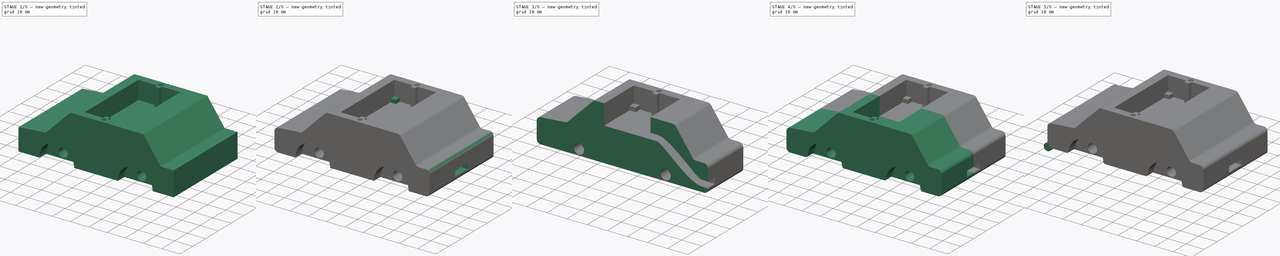
[diagram: build sequence overview — one tinted view per stage of 5, left to right]
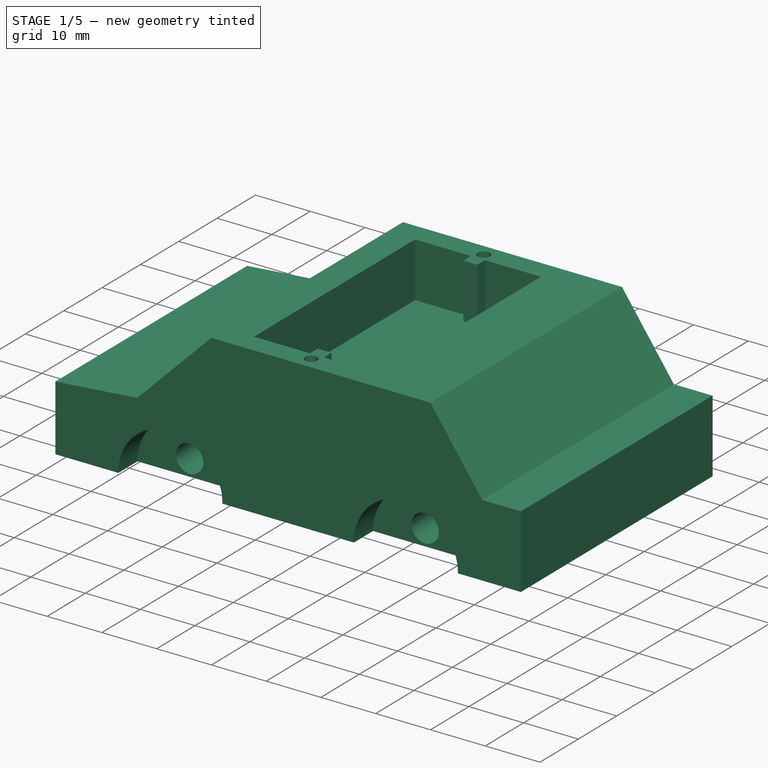
[diagram: stage 1 of 5 — iso view after this stage's code; geometry added in this stage tinted green]
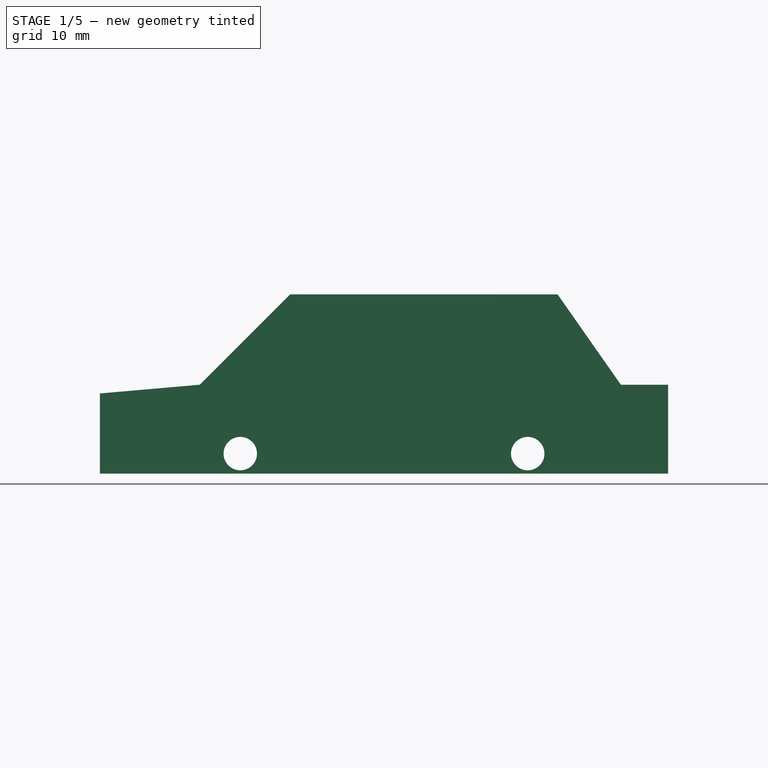
[diagram: stage 1 of 5 — front view after this stage's code; geometry added in this stage tinted green]
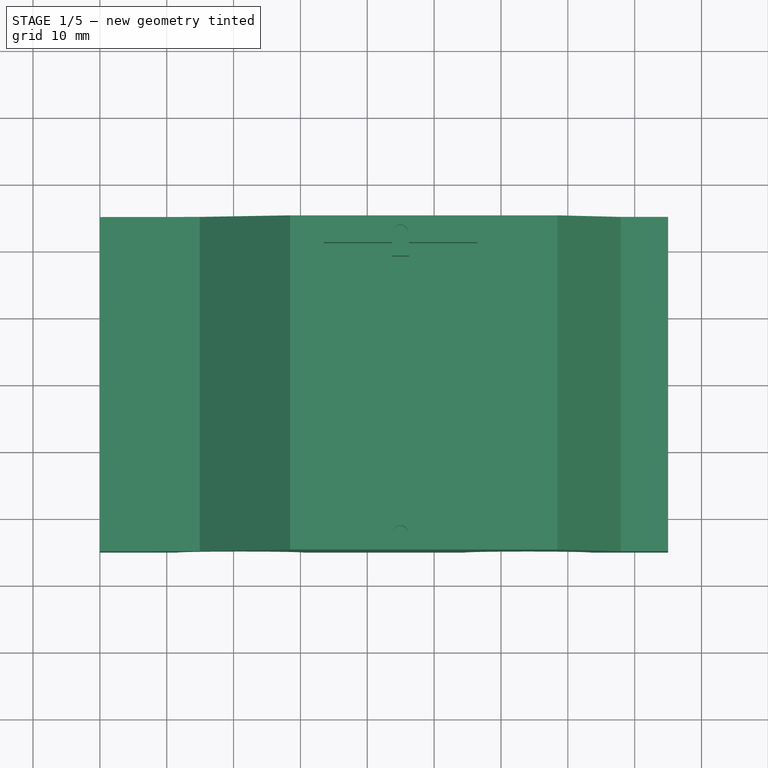
[diagram: stage 1 of 5 — top view after this stage's code; geometry added in this stage tinted green]
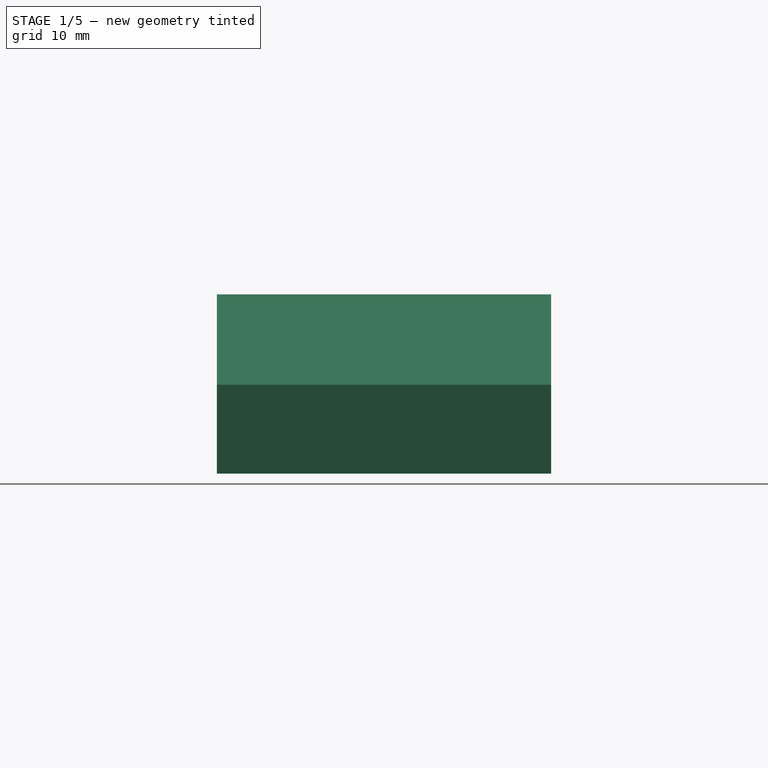
[diagram: stage 1 of 5 — right view after this stage's code; geometry added in this stage tinted green]
FCSTD DOCUMENT  (FreeCAD 0.21R30029 (Git))
Label: Car
License: All rights reserved
LicenseURL: http://en.wikipedia.org/wiki/All_rights_reserved
objects: Sketcher::SketchObject×10, PartDesign::Pad×6, PartDesign::Body×5, PartDesign::Pocket×4, Part::FeaturePython×3, PartDesign::Fillet×2, PartDesign::FeatureBase×2, Part::Feature×2, PartDesign::Mirrored×1, Part::Plane×1, App::DocumentObjectGroup×1, App::Part×1
note: 48 computed .brp shape members not serialized (recipe doc carries the construction recipe); baked Part::Feature solids carry a one-line shape summary decoded from their .brp

FEATURE [Sketcher::SketchObject] Sketch
  FullyConstrained = true
  MapMode = 5
  Placement = pos=(0,0,0) rot=(1,0,0;1.5708rad)
  Support = -> [XZ_Plane]
  sketch-geometry (15):
    g0: ArcOfCircle CenterX=21 CenterY=0 CenterZ=0 NormalX=0 NormalY=0 NormalZ=1 AngleXU=0 Radius=9.5 StartAngle=0 EndAngle=3.14159
    g1: ArcOfCircle CenterX=64 CenterY=0 CenterZ=0 NormalX=0 NormalY=0 NormalZ=1 AngleXU=0 Radius=9.5 StartAngle=0 EndAngle=3.14159
    g2: LineSegment StartX=30.5 StartY=1.2e-15 StartZ=0 EndX=54.5 EndY=1.2e-15 EndZ=0
    g3: LineSegment StartX=11.5 StartY=1.2e-15 StartZ=0 EndX=0 EndY=1.2e-15 EndZ=0
    g4: LineSegment StartX=0 StartY=1.2e-15 StartZ=0 EndX=0 EndY=12 EndZ=0
    g5: LineSegment StartX=0 StartY=12 StartZ=0 EndX=14.9429 EndY=13.3073 EndZ=0
    g6: LineSegment StartX=14.9429 StartY=13.3073 StartZ=0 EndX=28.4631 EndY=26.8275 EndZ=0
    g7: LineSegment StartX=28.4631 StartY=26.8275 StartZ=0 EndX=68.4631 EndY=26.8275 EndZ=0
    g8: LineSegment StartX=68.4631 StartY=26.8275 StartZ=0 EndX=77.93 EndY=13.3073 EndZ=0
    g9: LineSegment StartX=77.93 StartY=13.3073 StartZ=0 EndX=85 EndY=13.3073 EndZ=0
    g10: LineSegment StartX=85 StartY=13.3073 StartZ=0 EndX=85 EndY=1.8e-15 EndZ=0
    g11: LineSegment StartX=85 StartY=1.2e-15 StartZ=0 EndX=73.5 EndY=1.2e-15 EndZ=0
    g12: LineSegment StartX=54.5 StartY=1.2e-15 StartZ=0 EndX=73.5 EndY=1.2e-15 EndZ=0
    g13: LineSegment StartX=11.5 StartY=1.2e-15 StartZ=0 EndX=30.5 EndY=1.2e-15 EndZ=0
    g14: LineSegment StartX=14.9429 StartY=13.3073 StartZ=0 EndX=77.93 EndY=13.3073 EndZ=0
  constraints (43):
    c: Coincident(g2,g0)
    c: Coincident(g2,g1)
    c: Horizontal(g2)
    c: Coincident(g3,g0)
    c: Horizontal(g3)
    c: Coincident(g4,g3)
    c: Vertical(g4)
    c: Coincident(g5,g4)
    c: Coincident(g6,g5)
    c: Coincident(g7,g6)
    c: Horizontal(g7)
    c: Coincident(g8,g7)
    c: Coincident(g9,g8)
    c: Horizontal(g9)
    c: Coincident(g10,g9)
    c: Coincident(g11,g10)
    c: Coincident(g11,g1)
    c: Horizontal(g11)
    c: Coincident(g12,g1)
    c: Coincident(g12,g1)
    c: Coincident(g13,g0)
    c: Coincident(g13,g0)
    c: PointOnObject(g1,g12)
    c: PointOnObject(g0,g13)
    c: Horizontal(g12)
    c: Coincident(g3,g-1)
    c: Horizontal(g13)
    c: Vertical(g10)
    c: Distance(g7) = 40
    c: Angle(g7,g8) = 2.18166
    c: Coincident(g14,g5)
    c: Coincident(g14,g8)
    c: Horizontal(g14)
    c: Angle(g6,g7) = 2.35619
    c: Angle(g4,g5) = 1.65806
    c: Equal(g3,g11)
    c: Equal(g13,g12)
    c: Diameter(g0) = 19
    c: Distance(g3) = 11.5
    c: DistanceX(g3,g10) = 85
    c: Distance(g4) = 12
    c: Distance(g9) = 7.07
    c: Distance(g5) = 15
FEATURE [PartDesign::Pad] Pad
  Direction = (0,-1,-2e-16)
  Length = 50
  Length2 = 10
  Midplane = true
  Placement = pos=(0,0,0) rot=(1,0,0;1.5708rad)
  Profile = -> Sketch
  ReferenceAxis = -> Sketch [N_Axis]
  Type = 0
FEATURE [Sketcher::SketchObject] Sketch001
  ExternalGeometry = -> [Pad]
  FullyConstrained = true
  MapMode = 5
  Placement = pos=(0,-6e-15,26.8275) rot=(0,0,1;3.14159rad)
  Support = -> [Pad]
  sketch-geometry (18):
    g0: LineSegment StartX=-56.4631 StartY=21 StartZ=0 EndX=-56.4631 EndY=-21 EndZ=0
    g1: LineSegment StartX=-33.4631 StartY=-21 StartZ=0 EndX=-33.4631 EndY=21 EndZ=0
    g2: LineSegment StartX=-28.4631 StartY=25 StartZ=0 EndX=-33.4631 EndY=21 EndZ=0
    g3: LineSegment StartX=-33.4631 StartY=-21 StartZ=0 EndX=-28.4631 EndY=-25 EndZ=0
    g4: LineSegment StartX=-56.4631 StartY=21 StartZ=0 EndX=-46.2331 EndY=21 EndZ=0
    g5: LineSegment StartX=-46.2331 StartY=21 StartZ=0 EndX=-46.2331 EndY=19 EndZ=0
    g6: LineSegment StartX=-46.2331 StartY=19 StartZ=0 EndX=-43.6931 EndY=19 EndZ=0
    g7: LineSegment StartX=-43.6931 StartY=19 StartZ=0 EndX=-43.6931 EndY=21 EndZ=0
    g8: LineSegment StartX=-43.6931 StartY=21 StartZ=0 EndX=-33.4631 EndY=21 EndZ=0
    g9: LineSegment StartX=-56.4631 StartY=-21 StartZ=0 EndX=-46.2331 EndY=-21 EndZ=0
    g10: LineSegment StartX=-46.2331 StartY=-21 StartZ=0 EndX=-46.2331 EndY=-19 EndZ=0
    g11: LineSegment StartX=-46.2331 StartY=-19 StartZ=0 EndX=-43.6931 EndY=-19 EndZ=0
    g12: LineSegment StartX=-43.6931 StartY=-19 StartZ=0 EndX=-43.6931 EndY=-21 EndZ=0
    g13: LineSegment StartX=-43.6931 StartY=-21 StartZ=0 EndX=-33.4631 EndY=-21 EndZ=0
    g14: LineSegment StartX=-46.2331 StartY=-21 StartZ=0 EndX=-43.6931 EndY=-21 EndZ=0
    g15: LineSegment StartX=-46.2331 StartY=21 StartZ=0 EndX=-43.6931 EndY=21 EndZ=0
    g16: LineSegment StartX=-43.6931 StartY=19 StartZ=0 EndX=-43.6931 EndY=-19 EndZ=0
    g17: LineSegment StartX=-46.2331 StartY=-19 StartZ=0 EndX=-46.2331 EndY=19 EndZ=0
  constraints (48):
    c: Vertical(g0)
    c: Vertical(g1)
    c: Distance(g0) = 42
    c: Coincident(g2,g-4)
    c: Coincident(g3,g-3)
    c: Equal(g3,g2)
    c: DistanceX(g2,g2) = 5
    c: Coincident(g4,g0)
    c: Horizontal(g4)
    c: Coincident(g5,g4)
    c: Coincident(g6,g5)
    c: Horizontal(g6)
    c: Coincident(g7,g6)
    c: Coincident(g8,g7)
    c: Coincident(g8,g1)
    c: Horizontal(g8)
    c: Coincident(g9,g0)
    c: Coincident(g10,g9)
    c: Vertical(g10)
    c: Coincident(g11,g10)
    c: Coincident(g12,g11)
    c: Coincident(g13,g12)
    c: Coincident(g13,g1)
    c: Horizontal(g13)
    c: Coincident(g1,g2)
    c: Coincident(g3,g1)
    c: Vertical(g12)
    c: Horizontal(g11)
    c: Horizontal(g9)
    c: Coincident(g14,g9)
    c: Coincident(g14,g12)
    c: Coincident(g15,g4)
    c: Coincident(g15,g7)
    c: Vertical(g7)
    c: Vertical(g5)
    c: Horizontal(g15)
    c: Horizontal(g14)
    c: Coincident(g16,g6)
    c: Coincident(g16,g11)
    c: Coincident(g17,g10)
    c: Coincident(g17,g5)
    c: Vertical(g17)
    c: Vertical(g16)
    c: Equal(g4,g8)
    c: DistanceX(g0,g1) = 23
    c: Distance(g6) = 2.54
    c: Distance(g5) = 2
    c: Equal(g12,g7)
FEATURE [PartDesign::Pocket] Pocket
  BaseFeature = -> Pad
  Direction = (0,2e-16,-1)
  Length = 10
  Length2 = 5
  Placement = pos=(0,0,0) rot=(1,0,0;1.5708rad)
  Profile = -> Sketch001
  ReferenceAxis = -> Sketch001 [N_Axis]
  Type = 0
FEATURE [Sketcher::SketchObject] Sketch002
  ExternalGeometry = -> [Pocket]
  FullyConstrained = true
  MapMode = 5
  Placement = pos=(0,0,0) rot=(1,0,0;1.5708rad)
  Support = -> [XZ_Plane]
  sketch-geometry (9):
    g0: ArcOfCircle CenterX=21 CenterY=0 CenterZ=0 NormalX=0 NormalY=0 NormalZ=1 AngleXU=0 Radius=9.5 StartAngle=-5.3e-15 EndAngle=3.14159
    g1: ArcOfCircle CenterX=64 CenterY=0 CenterZ=0 NormalX=0 NormalY=0 NormalZ=1 AngleXU=0 Radius=9.5 StartAngle=1.3e-15 EndAngle=3.14159
    g2: LineSegment StartX=11.5 StartY=-1.17e-13 StartZ=0 EndX=30.5 EndY=-1.17e-13 EndZ=0
    g3: LineSegment StartX=54.5 StartY=1.24e-14 StartZ=0 EndX=73.5 EndY=1.24e-14 EndZ=0
    g4: Circle CenterX=21 CenterY=3 CenterZ=0 NormalX=0 NormalY=0 NormalZ=1 AngleXU=0 Radius=2.5
    g5: Circle CenterX=64 CenterY=3 CenterZ=0 NormalX=0 NormalY=0 NormalZ=1 AngleXU=0 Radius=2.5
    g6: LineSegment StartX=64 StartY=3 StartZ=0 EndX=64 EndY=0 EndZ=0
    g7: LineSegment StartX=21 StartY=3 StartZ=0 EndX=21 EndY=0 EndZ=0
    g8: LineSegment StartX=21 StartY=3 StartZ=0 EndX=64 EndY=3 EndZ=0
  constraints (22):
    c: Coincident(g0,g-4)
    c: Coincident(g1,g-3)
    c: Coincident(g2,g0)
    c: Coincident(g2,g0)
    c: Coincident(g3,g1)
    c: Coincident(g3,g1)
    c: Horizontal(g3)
    c: Horizontal(g2)
    c: Coincident(g1,g-3)
    c: Coincident(g0,g-4)
    c: Coincident(g6,g5)
    c: Coincident(g6,g1)
    c: Coincident(g7,g4)
    c: Coincident(g7,g0)
    c: Coincident(g8,g4)
    c: Coincident(g8,g5)
    c: Horizontal(g8)
    c: Vertical(g6)
    c: Vertical(g7)
    c: Diameter(g4) = 5
    c: Distance(g7) = 3
    c: Equal(g5,g4)
FEATURE [PartDesign::Pad] Pad001
  BaseFeature = -> Pocket
  Direction = (0,-1,-2e-16)
  Length = 40
  Length2 = 10
  Midplane = true
  Placement = pos=(0,0,0) rot=(1,0,0;1.5708rad)
  Profile = -> Sketch002
  ReferenceAxis = -> Sketch002 [N_Axis]
  Type = 0
FEATURE [Sketcher::SketchObject] Sketch003
  ExternalGeometry = -> [Pocket]
  FullyConstrained = true
  MapMode = 5
  Placement = pos=(0,-6e-15,26.8275) rot=(0,0,1;3.14159rad)
  Support = -> [Pocket]
  sketch-geometry (6):
    g0: Circle CenterX=-44.9631 CenterY=-22.5 CenterZ=0 NormalX=0 NormalY=0 NormalZ=1 AngleXU=0 Radius=1.125
    g1: Circle CenterX=-44.9631 CenterY=22.5 CenterZ=0 NormalX=0 NormalY=0 NormalZ=1 AngleXU=0 Radius=1.125
    g2: LineSegment StartX=-46.2331 StartY=-19 StartZ=0 EndX=-44.9631 EndY=-22.5 EndZ=0
    g3: LineSegment StartX=-44.9631 StartY=-22.5 StartZ=0 EndX=-43.6931 EndY=-19 EndZ=0
    g4: LineSegment StartX=-46.2331 StartY=19 StartZ=0 EndX=-44.9631 EndY=22.5 EndZ=0
    g5: LineSegment StartX=-44.9631 StartY=22.5 StartZ=0 EndX=-43.6931 EndY=19 EndZ=0
  constraints (18):
    c: Coincident(g2,g-7)
    c: Coincident(g2,g0)
    c: Coincident(g3,g0)
    c: Coincident(g4,g-6)
    c: Coincident(g4,g1)
    c: Coincident(g5,g1)
    c: Coincident(g5,g-6)
    c: Equal(g1,g0)
    c: Equal(g5,g4)
    c: Equal(g3,g2)
    c: Equal(g3,g5)
    c: Diameter(g1) = 2.25
    c: DistanceY(g4,g4) = 3.5
    c: Coincident(g3,g-7)
    c: DistanceY(g0,g1) = 45
    c: Distance(g-4) = 40
    c: DistanceX(g1,g-4) = 16.5
    c: Distance(g-3) = 50
FEATURE [PartDesign::Pocket] Pocket001
  BaseFeature = -> Pad001
  Direction = (0,2e-16,-1)
  Length = 4
  Length2 = 5
  Placement = pos=(0,0,0) rot=(1,0,0;1.5708rad)
  Profile = -> Sketch003
  ReferenceAxis = -> Sketch003 [N_Axis]
  Type = 0
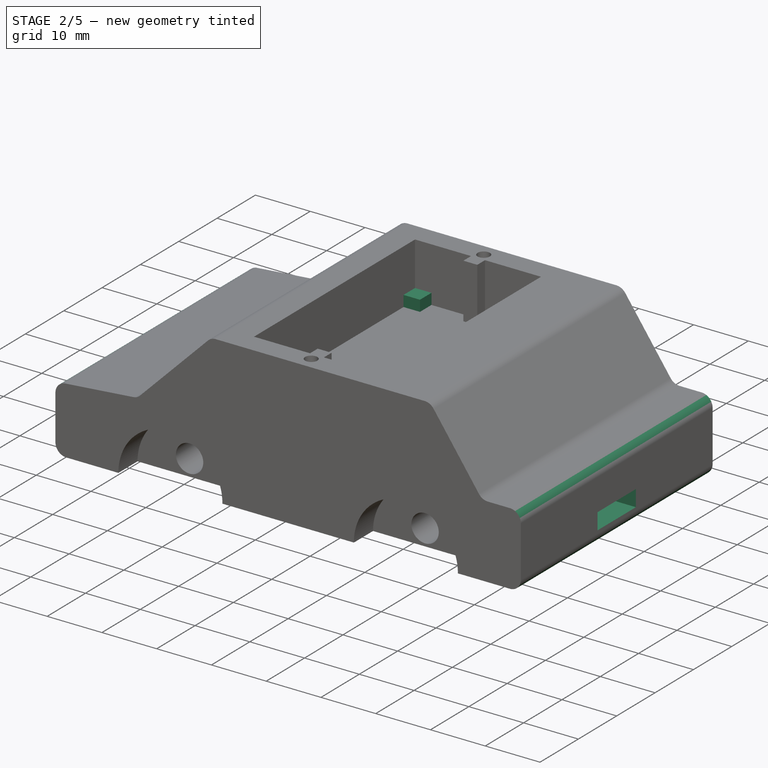
[diagram: stage 2 of 5 — iso view after this stage's code; geometry added in this stage tinted green]
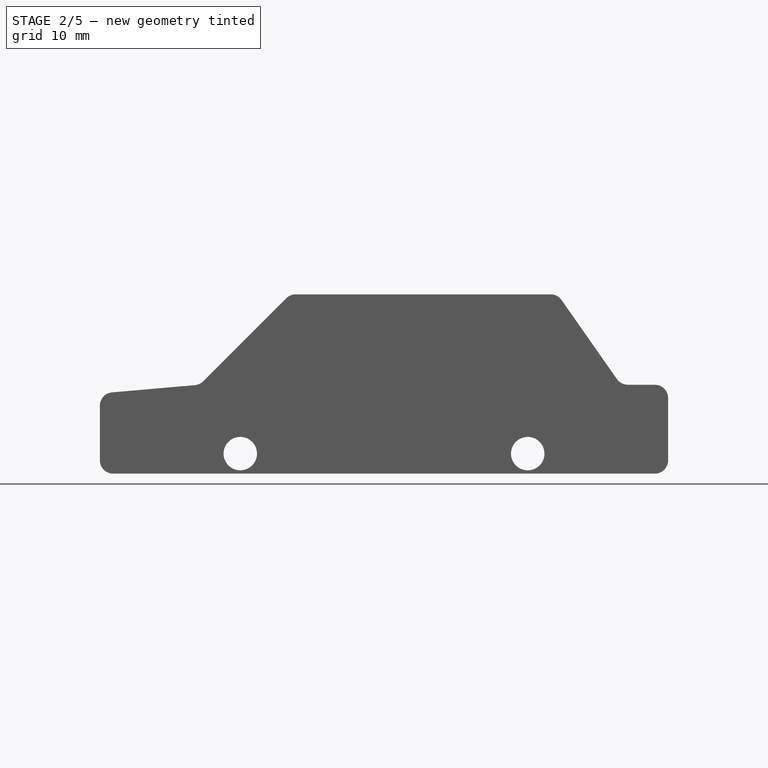
[diagram: stage 2 of 5 — front view after this stage's code; geometry added in this stage tinted green]
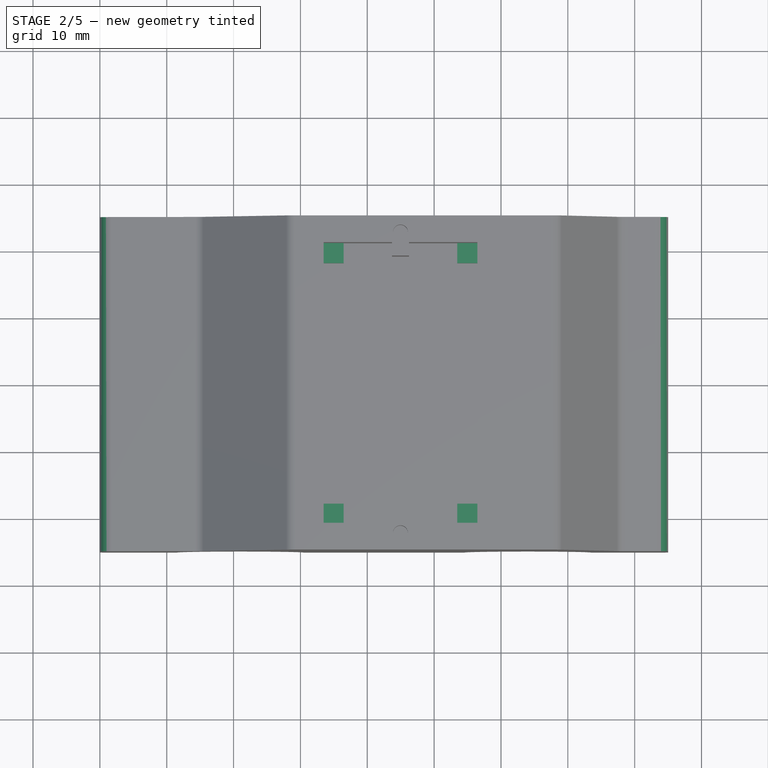
[diagram: stage 2 of 5 — top view after this stage's code; geometry added in this stage tinted green]
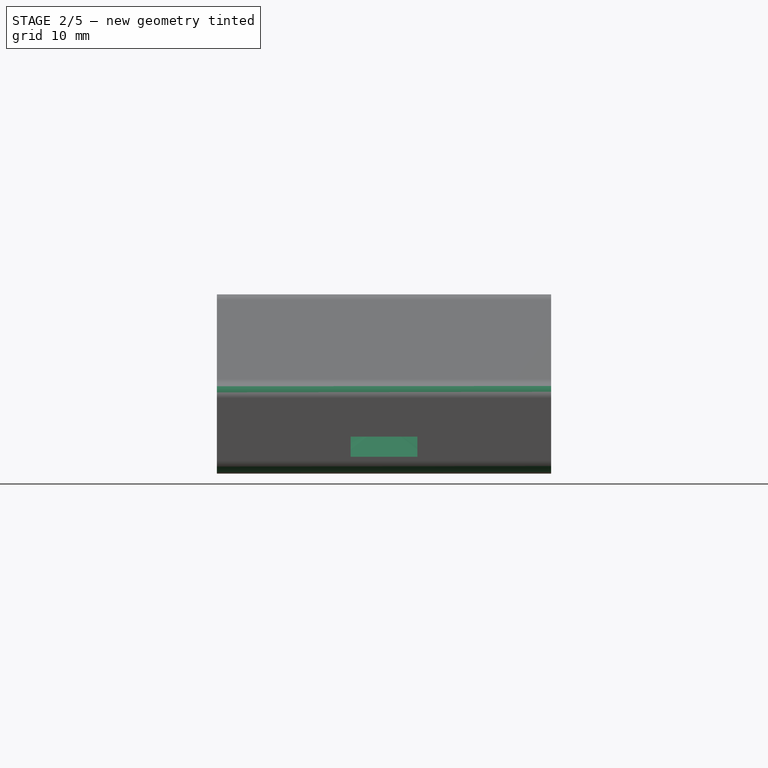
[diagram: stage 2 of 5 — right view after this stage's code; geometry added in this stage tinted green]
FEATURE [PartDesign::Body] Body001
  Group = -> [Sketch004,Pad002,Mirrored]
  Origin = -> Origin001
  Placement = pos=(21,0,3) rot=(0,0,1;0rad)
  Tip = -> Mirrored
FEATURE [Sketcher::SketchObject] Sketch006
  ExternalGeometry = -> [Pocket001]
  FullyConstrained = true
  MapMode = 5
  Placement = pos=(0,0,0) rot=(1,0,0;1.5708rad)
  Support = -> [XZ_Plane]
  sketch-geometry (26):
    g0: LineSegment StartX=56.4631 StartY=16.8275 StartZ=0 EndX=59.6031 EndY=16.8275 EndZ=0
    g1: LineSegment StartX=85 StartY=2.54 StartZ=0 EndX=81.86 EndY=2.54 EndZ=0
    g2: LineSegment StartX=85 StartY=5.54 StartZ=0 EndX=81.86 EndY=5.54 EndZ=0
    g3: LineSegment StartX=56.4631 StartY=19.8275 StartZ=0 EndX=59.6031 EndY=19.8275 EndZ=0
    g4: LineSegment StartX=59.6031 StartY=19.8275 StartZ=0 EndX=59.6031 EndY=16.8275 EndZ=0
    g5: LineSegment StartX=81.86 StartY=5.54 StartZ=0 EndX=81.86 EndY=2.54 EndZ=0
    g6: LineSegment StartX=56.4631 StartY=19.8275 StartZ=0 EndX=56.4631 EndY=16.8275 EndZ=0
    g7-g10: Circle x4 (B-spline internal-alignment scaffolding for g11; pole/knot coordinates omitted)
    g11: BSplineCurve PolesCount=4 KnotsCount=2 Degree=3 IsPeriodic=0
    g12: GeomPoint X=59.6031 Y=19.8275 Z=0
    g13: GeomPoint X=81.86 Y=5.54 Z=0
    g14-g17: Circle x4 (B-spline internal-alignment scaffolding for g18; pole/knot coordinates omitted)
    g18: BSplineCurve PolesCount=4 KnotsCount=2 Degree=3 IsPeriodic=0
    g19: GeomPoint X=59.6031 Y=16.8275 Z=0
    g20: GeomPoint X=81.86 Y=2.54 Z=0
    g21: LineSegment StartX=59.6031 StartY=16.8275 StartZ=0 EndX=62.6031 EndY=16.8275 EndZ=0
    g22: LineSegment StartX=59.6031 StartY=19.8275 StartZ=0 EndX=66.6731 EndY=19.8275 EndZ=0
    g23: LineSegment StartX=81.86 StartY=5.54 StartZ=0 EndX=78.86 EndY=5.54 EndZ=0
    g24: LineSegment StartX=81.86 StartY=2.54 StartZ=0 EndX=74.79 EndY=2.54 EndZ=0
    g25: LineSegment StartX=85 StartY=5.54 StartZ=0 EndX=85 EndY=2.54 EndZ=0
  constraints (57):
    c: Coincident(g0,g-4)
    c: Horizontal(g0)
    c: PointOnObject(g1,g-8)
    c: Horizontal(g1)
    c: PointOnObject(g2,g-8)
    c: Horizontal(g2)
    c: Horizontal(g3)
    c: Coincident(g4,g3)
    c: Coincident(g4,g0)
    c: Coincident(g5,g2)
    c: Coincident(g5,g1)
    c: DistanceY(g-8,g1) = 2.54
    c: DistanceY(g5,g5) = 3
    c: Vertical(g5)
    c: Equal(g5,g4)
    c: Vertical(g4)
    c: Coincident(g6,g3)
    c: Coincident(g6,g0)
    c: Vertical(g6)
    c: Weight(g7) = 1
    c: Coincident(g11,g3)
    c: Equal(g7,g8)
    c: Equal(g7,g9)
    c: Equal(g7,g10)
    c: Coincident(g11,g2)
    c: InternalAlignment(g7-g10 -> g11) x4
    c: InternalAlignment(g12,g11)
    c: InternalAlignment(g13,g11)
    c: Weight(g14) = 1
    c: Coincident(g18,g0)
    c: Equal(g14,g15)
    c: Equal(g14,g16)
    c: Equal(g14,g17)
    c: Coincident(g18,g1)
    c: InternalAlignment(g14-g17 -> g18) x4
    c: InternalAlignment(g19,g18)
    c: InternalAlignment(g20,g18)
    c: Coincident(g21,g0)
    c: Coincident(g21,g15)
    c: Horizontal(g21)
    c: Coincident(g22,g3)
    c: Coincident(g22,g8)
    c: Coincident(g23,g2)
    c: Coincident(g23,g9)
    c: Coincident(g24,g1)
    c: Coincident(g24,g16)
    c: Horizontal(g24)
    c: Horizontal(g23)
    c: Equal(g23,g21)
    c: Equal(g24,g22)
    c: Distance(g3) = 3.14
    c: Distance(g2) = 3.14
    c: Horizontal(g22)
    c: Distance(g21) = 3
    c: Distance(g22) = 7.07
    c: Coincident(g25,g2)
    c: Coincident(g1,g25)
FEATURE [PartDesign::Pocket] Pocket002
  BaseFeature = -> Pocket001
  Direction = (0,1,2e-16)
  Length = 10
  Length2 = 5
  Midplane = true
  Placement = pos=(0,0,0) rot=(1,0,0;1.5708rad)
  Profile = -> Sketch006
  ReferenceAxis = -> Sketch006 [N_Axis]
  Type = 0
FEATURE [Sketcher::SketchObject] Sketch007
  ExternalGeometry = -> [Pocket002]
  FullyConstrained = true
  MapMode = 5
  Placement = pos=(0,-2.9e-15,16.8275) rot=(0,0,1;3.14159rad)
  Support = -> [Pocket002]
  sketch-geometry (16):
    g0: LineSegment StartX=-56.4631 StartY=-21 StartZ=0 EndX=-53.4631 EndY=-21 EndZ=0
    g1: LineSegment StartX=-53.4631 StartY=-21 StartZ=0 EndX=-53.4631 EndY=-18 EndZ=0
    g2: LineSegment StartX=-53.4631 StartY=-18 StartZ=0 EndX=-56.4631 EndY=-18 EndZ=0
    g3: LineSegment StartX=-56.4631 StartY=-18 StartZ=0 EndX=-56.4631 EndY=-21 EndZ=0
    g4: LineSegment StartX=-33.4631 StartY=-21 StartZ=0 EndX=-36.4631 EndY=-21 EndZ=0
    g5: LineSegment StartX=-36.4631 StartY=-21 StartZ=0 EndX=-36.4631 EndY=-18 EndZ=0
    g6: LineSegment StartX=-36.4631 StartY=-18 StartZ=0 EndX=-33.4631 EndY=-18 EndZ=0
    g7: LineSegment StartX=-33.4631 StartY=-18 StartZ=0 EndX=-33.4631 EndY=-21 EndZ=0
    g8: LineSegment StartX=-33.4631 StartY=21 StartZ=0 EndX=-36.4631 EndY=21 EndZ=0
    g9: LineSegment StartX=-36.4631 StartY=21 StartZ=0 EndX=-36.4631 EndY=18 EndZ=0
    g10: LineSegment StartX=-36.4631 StartY=18 StartZ=0 EndX=-33.4631 EndY=18 EndZ=0
    g11: LineSegment StartX=-33.4631 StartY=18 StartZ=0 EndX=-33.4631 EndY=21 EndZ=0
    g12: LineSegment StartX=-56.4631 StartY=21 StartZ=0 EndX=-53.4631 EndY=21 EndZ=0
    g13: LineSegment StartX=-53.4631 StartY=21 StartZ=0 EndX=-53.4631 EndY=18 EndZ=0
    g14: LineSegment StartX=-53.4631 StartY=18 StartZ=0 EndX=-56.4631 EndY=18 EndZ=0
    g15: LineSegment StartX=-56.4631 StartY=18 StartZ=0 EndX=-56.4631 EndY=21 EndZ=0
  constraints (44):
    c: Coincident(g0,g1)
    c: Coincident(g1,g2)
    c: Coincident(g2,g3)
    c: Coincident(g3,g0)
    c: Horizontal(g0)
    c: Horizontal(g2)
    c: Vertical(g1)
    c: Vertical(g3)
    c: Coincident(g0,g-5)
    c: Coincident(g4,g5)
    c: Coincident(g5,g6)
    c: Coincident(g6,g7)
    c: Coincident(g7,g4)
    c: Horizontal(g4)
    c: Horizontal(g6)
    c: Vertical(g5)
    c: Vertical(g7)
    c: Coincident(g4,g-4)
    c: Coincident(g8,g9)
    c: Coincident(g9,g10)
    c: Coincident(g10,g11)
    c: Coincident(g11,g8)
    c: Horizontal(g8)
    c: Horizontal(g10)
    c: Vertical(g9)
    c: Vertical(g11)
    c: Coincident(g8,g-4)
    c: Coincident(g12,g13)
    c: Coincident(g13,g14)
    c: Coincident(g14,g15)
    c: Coincident(g15,g12)
    c: Horizontal(g12)
    c: Horizontal(g14)
    c: Vertical(g13)
    c: Vertical(g15)
    c: Coincident(g12,g-3)
    c: Equal(g13,g9)
    c: Equal(g9,g5)
    c: Equal(g5,g1)
    c: Equal(g2,g6)
    c: Equal(g6,g10)
    c: Equal(g10,g14)
    c: Distance(g13) = 3
    c: Distance(g14) = 3
FEATURE [PartDesign::Pad] Pad004
  BaseFeature = -> Pocket002
  Direction = (0,-2e-16,1)
  Length = 2
  Length2 = 10
  Placement = pos=(0,0,0) rot=(1,0,0;1.5708rad)
  Profile = -> Sketch007
  ReferenceAxis = -> Sketch007 [N_Axis]
  Type = 0
FEATURE [PartDesign::Fillet] Fillet
  Base = -> Pad004 [Edge32,Edge30,Edge28,Edge18,Edge55,Edge52,Edge50,Edge35]
  BaseFeature = -> Pad004
  Placement = pos=(0,0,0) rot=(1,0,0;1.5708rad)
  Radius = 2
  SupportTransform = false
  UseAllEdges = false
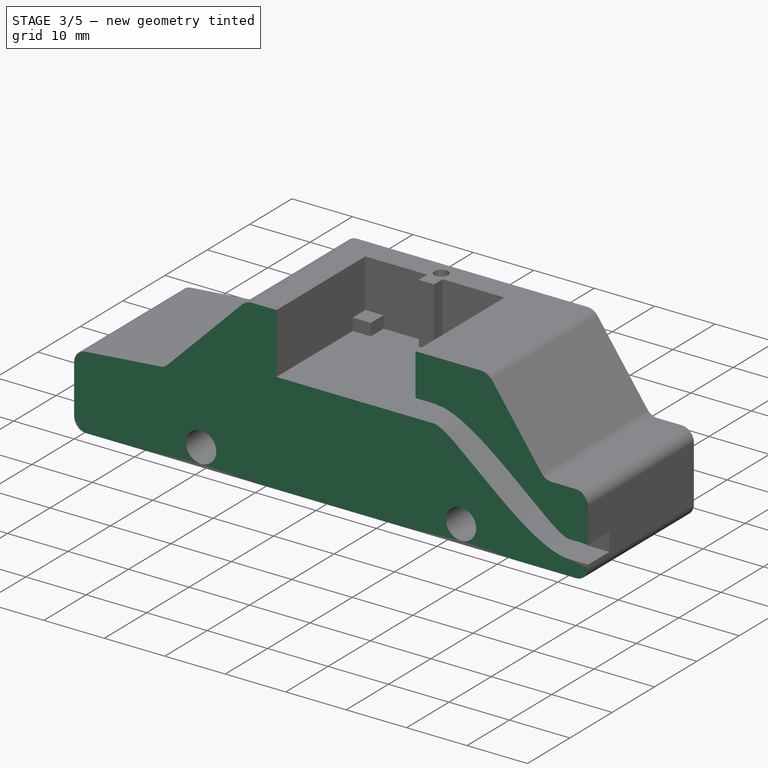
[diagram: stage 3 of 5 — iso view after this stage's code; geometry added in this stage tinted green]
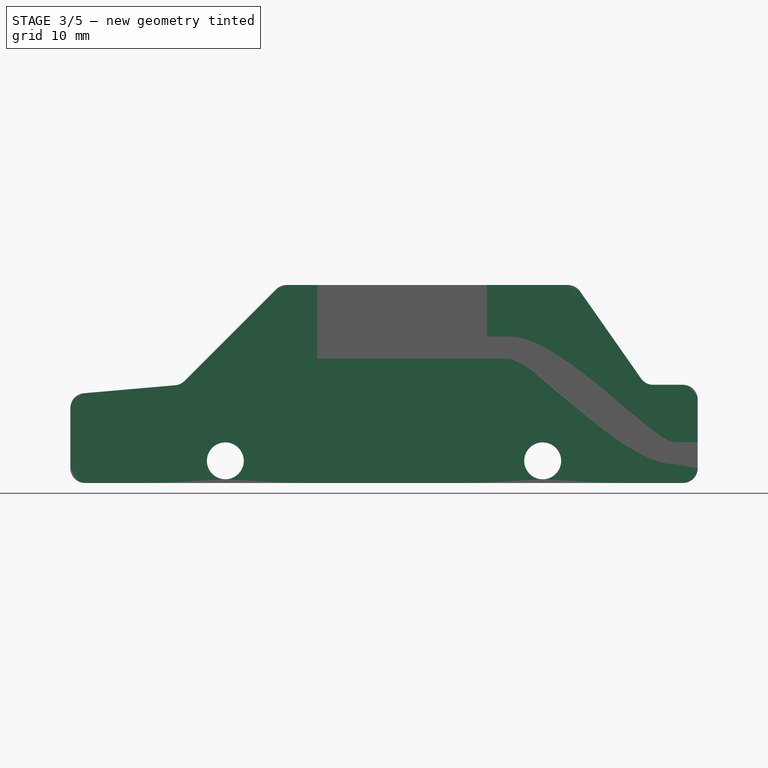
[diagram: stage 3 of 5 — front view after this stage's code; geometry added in this stage tinted green]
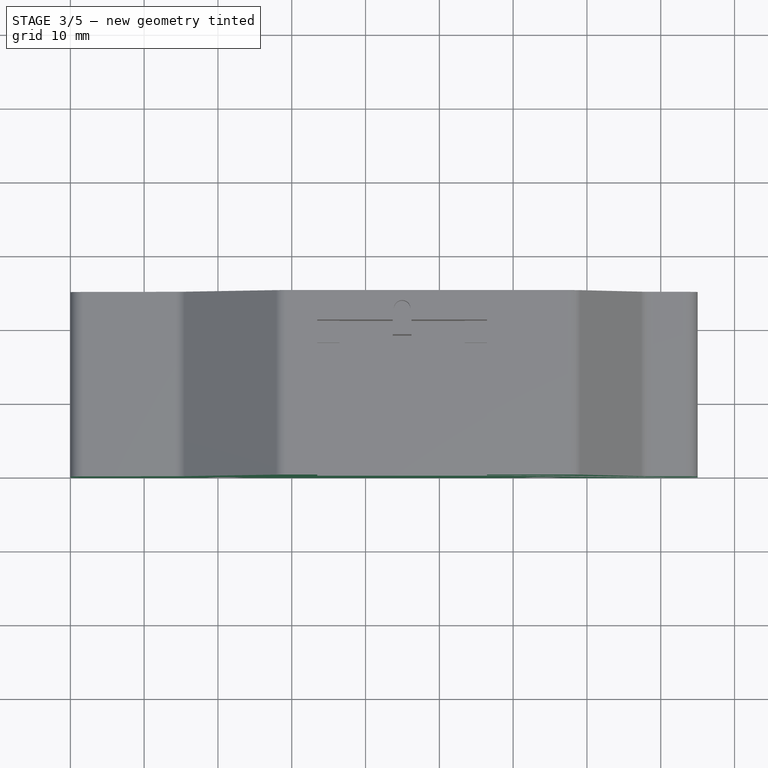
[diagram: stage 3 of 5 — top view after this stage's code; geometry added in this stage tinted green]
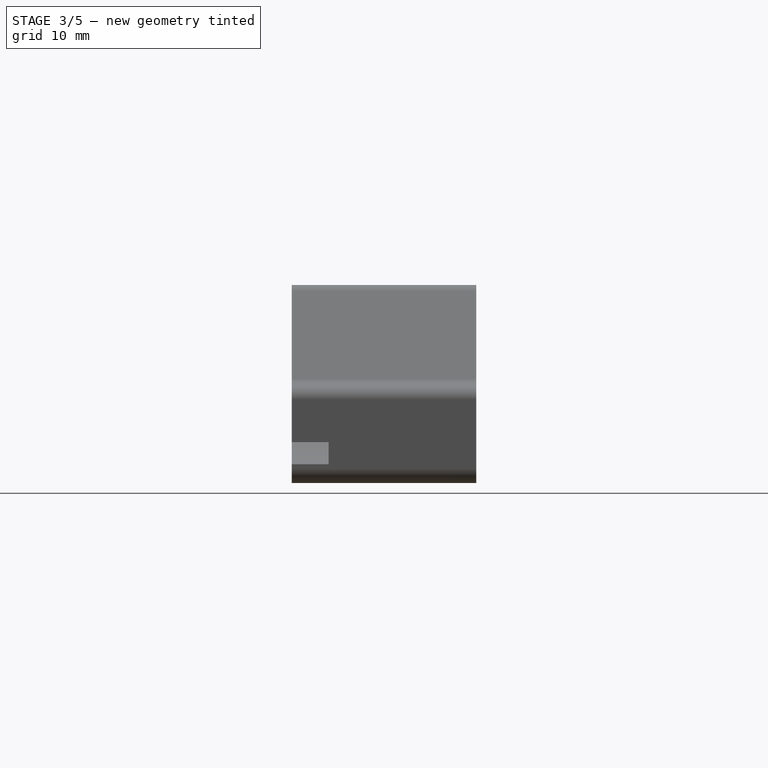
[diagram: stage 3 of 5 — right view after this stage's code; geometry added in this stage tinted green]
FEATURE [PartDesign::Fillet] Fillet001
  Base = -> Fillet [Edge41,Edge34,Edge29,Edge22,Edge47,Edge36,Edge33,Edge25]
  BaseFeature = -> Fillet
  Placement = pos=(0,0,0) rot=(1,0,0;1.5708rad)
  Radius = 1
  SupportTransform = false
  UseAllEdges = false
FEATURE [PartDesign::Body] Body002
  Group = -> [Sketch009,Pad006]
  Origin = -> Origin003
  Placement = pos=(21,-21,3) rot=(0,0,1;0rad)
  Tip = -> Pad006
FEATURE [Part::FeaturePython] Slice  # WARN: FeaturePython — macro-defined, semantics opaque (R4)
  Base = -> Body
  Mode = 1
  Tolerance = 0
  Tools = -> [Plane]
FEATURE [Part::FeaturePython] Slice_child0  label="Slice.0"  # WARN: FeaturePython — macro-defined, semantics opaque (R4)
  Base = -> Slice
  FilterType = 1
  Invert = false
  OverrideMaxVal = 0
  WindowFrom = 80
  WindowTo = 100
  items = 0
FEATURE [App::DocumentObjectGroup] GrExplode_Slice  label="Exploded Slice"
  Group = -> [Slice_child0,Slice_child1]
FEATURE [PartDesign::FeatureBase] BaseFeature
  BaseFeature = -> Slice_child0
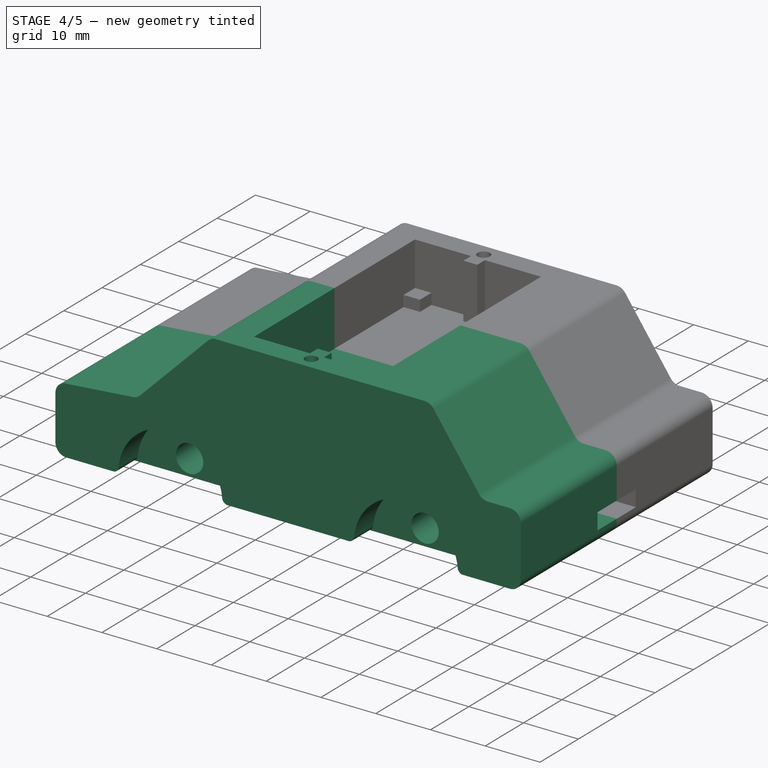
[diagram: stage 4 of 5 — iso view after this stage's code; geometry added in this stage tinted green]
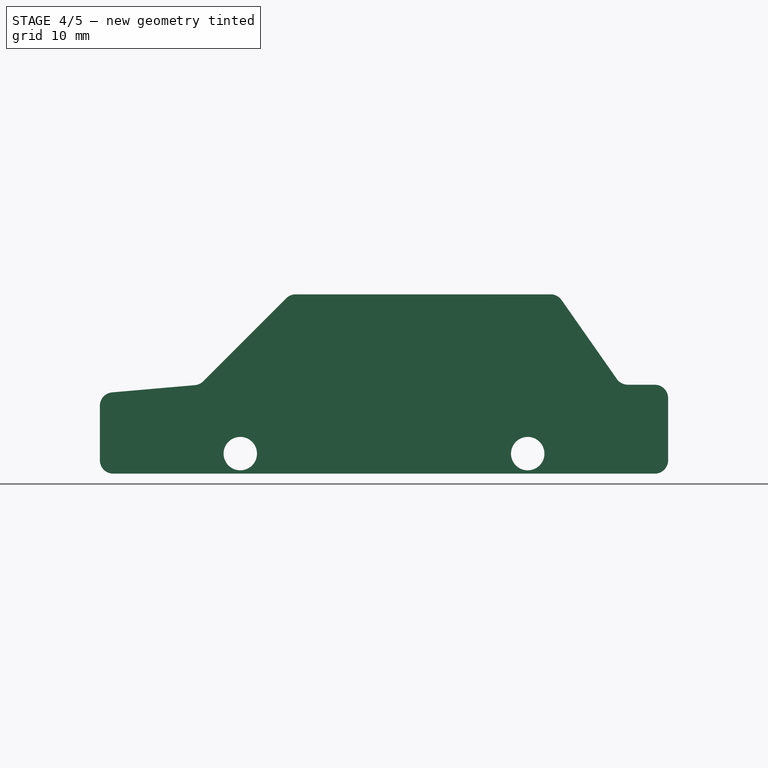
[diagram: stage 4 of 5 — front view after this stage's code; geometry added in this stage tinted green]
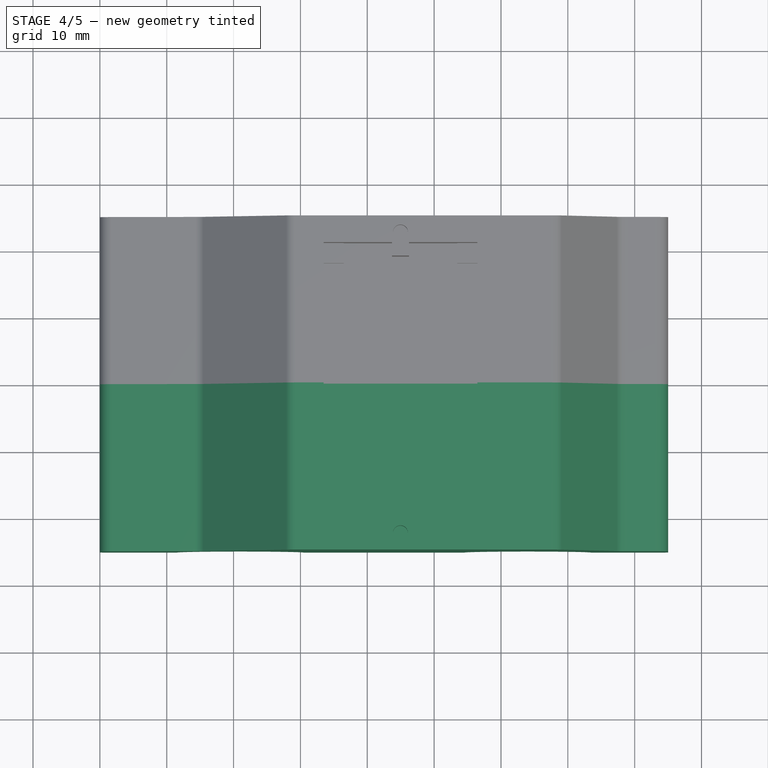
[diagram: stage 4 of 5 — top view after this stage's code; geometry added in this stage tinted green]
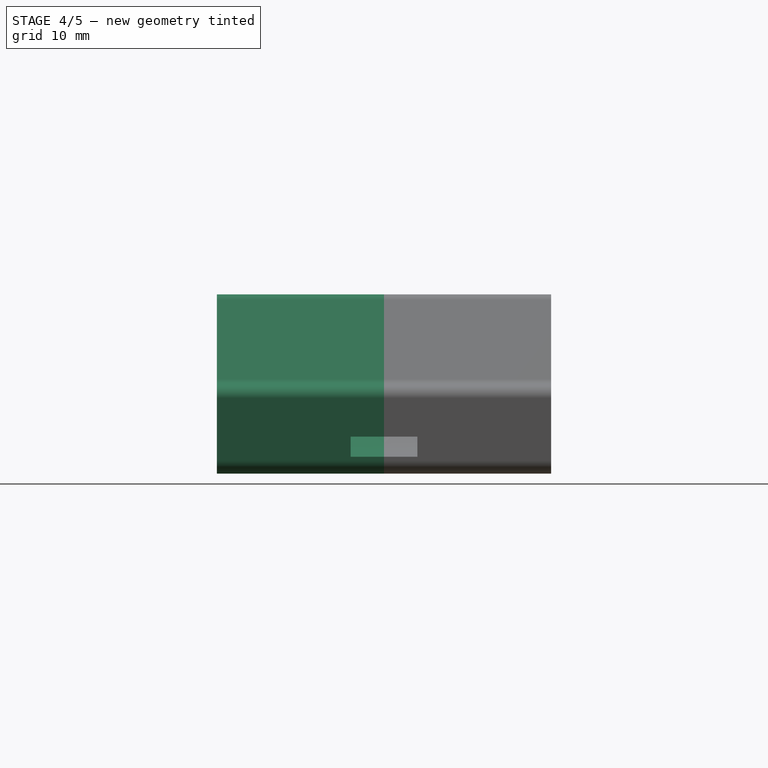
[diagram: stage 4 of 5 — right view after this stage's code; geometry added in this stage tinted green]
FEATURE [Part::FeaturePython] Slice_child1  label="Slice.1"  # WARN: FeaturePython — macro-defined, semantics opaque (R4)
  Base = -> Slice
  FilterType = 1
  Invert = false
  OverrideMaxVal = 0
  WindowFrom = 80
  WindowTo = 100
  items = 1
FEATURE [PartDesign::FeatureBase] BaseFeature001
  BaseFeature = -> Slice_child1
FEATURE [PartDesign::Body] Body004
  BaseFeature = -> Slice_child1
  Group = -> [BaseFeature001,Sketch010,Pad007]
  Origin = -> Origin005
  Tip = -> Pad007
FEATURE [Sketcher::SketchObject] Sketch011
  ExternalGeometry = -> [BaseFeature]
  FullyConstrained = true
  MapMode = 5
  Placement = pos=(0,0,0) rot=(1,0,0;1.5708rad)
  Support = -> [BaseFeature]
  sketch-geometry (13):
    g0: LineSegment StartX=30.4631 StartY=26.8275 StartZ=0 EndX=30.4631 EndY=23.8275 EndZ=0
    g1: LineSegment StartX=30.4631 StartY=23.8275 StartZ=0 EndX=33.4631 EndY=23.8275 EndZ=0
    g2: LineSegment StartX=56.4631 StartY=23.8275 StartZ=0 EndX=59.4631 EndY=23.8275 EndZ=0
    g3: LineSegment StartX=59.4631 StartY=23.8275 StartZ=0 EndX=59.4631 EndY=26.8275 EndZ=0
    g4: LineSegment StartX=0 StartY=3 StartZ=0 EndX=3 EndY=3 EndZ=0
    g5: LineSegment StartX=3 StartY=3 StartZ=0 EndX=3 EndY=0 EndZ=0
    g6: LineSegment StartX=85 StartY=5.54 StartZ=0 EndX=85 EndY=3 EndZ=0
    g7: LineSegment StartX=85 StartY=3 StartZ=0 EndX=73 EndY=3 EndZ=0
    g8: LineSegment StartX=73 StartY=3 StartZ=0 EndX=73 EndY=0 EndZ=0
    g9: Circle CenterX=59.4631 CenterY=23.8275 CenterZ=0 NormalX=0 NormalY=0 NormalZ=1 AngleXU=0 Radius=1.625
    g10: Circle CenterX=30.4631 CenterY=23.8275 CenterZ=0 NormalX=0 NormalY=0 NormalZ=1 AngleXU=0 Radius=1.625
    g11: Circle CenterX=3 CenterY=3 CenterZ=0 NormalX=0 NormalY=0 NormalZ=1 AngleXU=0 Radius=1.625
    g12: Circle CenterX=73 CenterY=3 CenterZ=0 NormalX=0 NormalY=0 NormalZ=1 AngleXU=0 Radius=1.625
  constraints (38):
    c: PointOnObject(g0,g-6)
    c: Vertical(g0)
    c: Coincident(g1,g0)
    c: PointOnObject(g1,g-5)
    c: Horizontal(g1)
    c: PointOnObject(g2,g-3)
    c: Horizontal(g2)
    c: Coincident(g3,g2)
    c: PointOnObject(g3,g-4)
    c: Vertical(g3)
    c: PointOnObject(g4,g-8)
    c: Horizontal(g4)
    c: Coincident(g5,g4)
    c: PointOnObject(g5,g-7)
    c: Vertical(g5)
    c: Coincident(g6,g-9)
    c: Vertical(g6)
    c: Coincident(g7,g6)
    c: Horizontal(g7)
    c: Coincident(g8,g7)
    c: PointOnObject(g8,g-10)
    c: Vertical(g8)
    c: Equal(g3,g2)
    c: Equal(g2,g1)
    c: Equal(g1,g0)
    c: Equal(g0,g5)
    c: Equal(g5,g4)
    c: Equal(g4,g8)
    c: Coincident(g9,g2)
    c: Coincident(g10,g0)
    c: Coincident(g11,g4)
    c: Coincident(g12,g7)
    c: Distance(g7) = 12
    c: Distance(g0) = 3
    c: Diameter(g10) = 3.25
    c: Equal(g10,g9)
    c: Equal(g9,g12)
    c: Equal(g12,g11)
FEATURE [PartDesign::Pocket] Pocket003
  BaseFeature = -> BaseFeature
  Direction = (0,1,-2e-16)
  Length = 5
  Length2 = 5
  Profile = -> Sketch011
  ReferenceAxis = -> Sketch011 [N_Axis]
  Type = 0
FEATURE [PartDesign::Body] Body003
  BaseFeature = -> Slice_child0
  Group = -> [BaseFeature,Sketch011,Pocket003]
  Origin = -> Origin004
  Tip = -> Pocket003
FEATURE [Part::Feature] Body002001
  Placement = pos=(21,25,3) rot=(0,0,1;0rad)
  shape: bbox 12 x 4 x 12 mm, 4 faces (baked)
FEATURE [App::Part] Part  label="WheelFront"
  Group = -> [Body001,Body002,Body002001]
  Origin = -> Origin002
FEATURE [Part::Feature] Part001  label="WheelBack"
  Placement = pos=(43,0,0) rot=(0,0,1;0rad)
  shape: bbox 12 x 50 x 12 mm, 12 faces, 3 solids (baked)
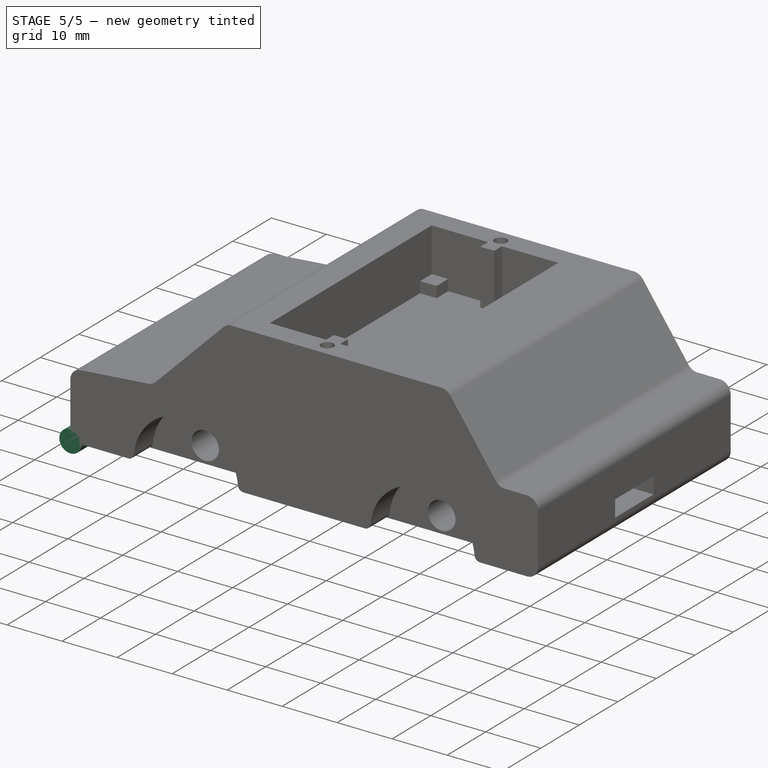
[diagram: stage 5 of 5 — iso view after this stage's code; geometry added in this stage tinted green]
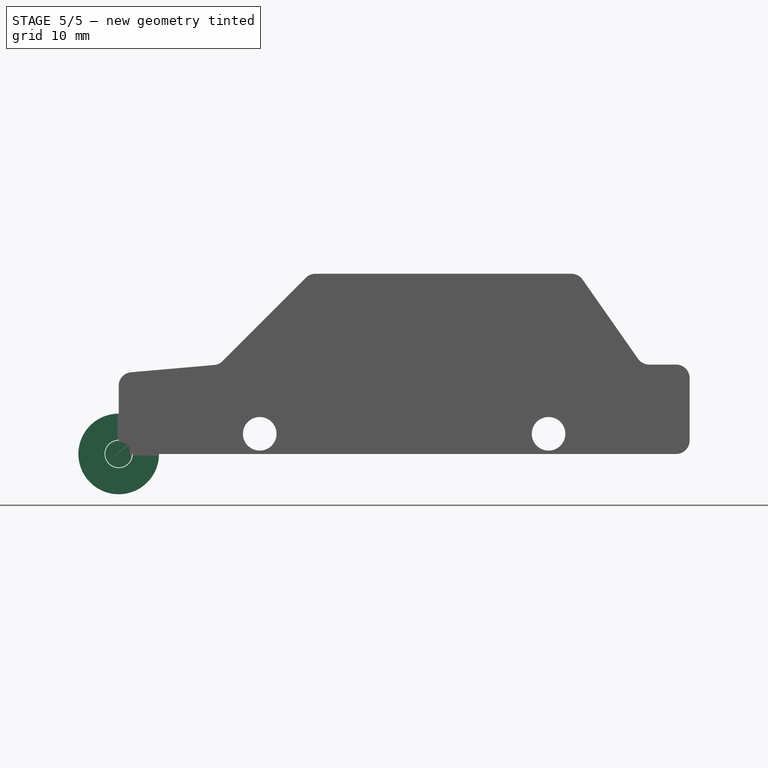
[diagram: stage 5 of 5 — front view after this stage's code; geometry added in this stage tinted green]
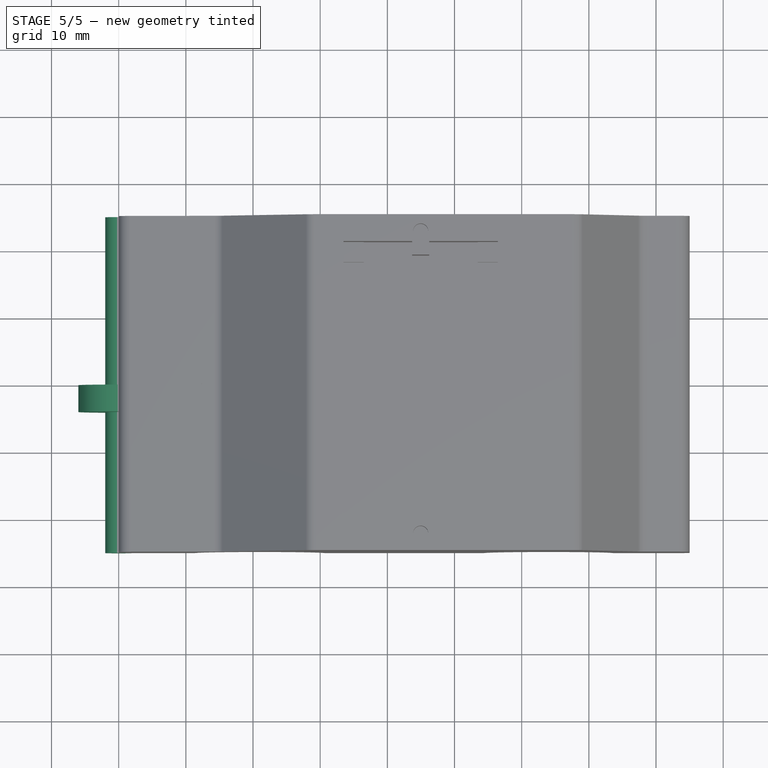
[diagram: stage 5 of 5 — top view after this stage's code; geometry added in this stage tinted green]
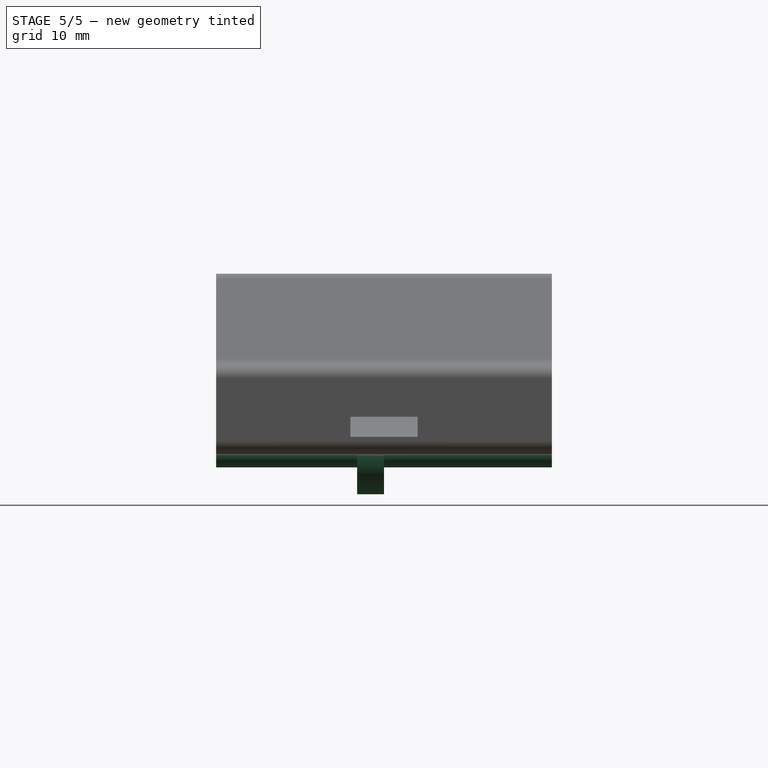
[diagram: stage 5 of 5 — right view after this stage's code; geometry added in this stage tinted green]
FEATURE [Sketcher::SketchObject] Sketch004
  FullyConstrained = true
  MapMode = 5
  Placement = pos=(0,0,0) rot=(1,0,0;1.5708rad)
  Support = -> [XZ_Plane001]
  sketch-geometry (1):
    g0: Circle CenterX=0 CenterY=0 CenterZ=0 NormalX=0 NormalY=0 NormalZ=1 AngleXU=0 Radius=2
  constraints (2):
    c: Coincident(g0,g-1)
    c: Diameter(g0) = 4
FEATURE [PartDesign::Pad] Pad002
  Direction = (0,-1,-2e-16)
  Length = 25
  Length2 = 10
  Placement = pos=(0,0,0) rot=(1,0,0;1.5708rad)
  Profile = -> Sketch004
  ReferenceAxis = -> Sketch004 [N_Axis]
  Type = 0
FEATURE [PartDesign::Mirrored] Mirrored
  BaseFeature = -> Pad002
  MirrorPlane = -> XZ_Plane001
  Originals = -> [Pad002]
  Placement = pos=(0,0,0) rot=(1,0,0;1.5708rad)
FEATURE [PartDesign::Body] Body
  Group = -> [Sketch,Pad,Sketch001,Pocket,Sketch002,Pad001,Sketch003,Pocket001,Sketch006,Pocket002,Sketch007,Pad004,Fillet,Fillet001]
  Origin = -> Origin
  Tip = -> Fillet001
FEATURE [Part::Plane] Plane
  AttacherType = Attacher::AttachEngine3D
  Length = 100
  Placement = pos=(-7,0,-10) rot=(1,0,0;1.5708rad)
  Width = 50
FEATURE [Sketcher::SketchObject] Sketch009
  FullyConstrained = true
  MapMode = 5
  Placement = pos=(0,0,0) rot=(1,0,0;1.5708rad)
  Support = -> [XZ_Plane003]
  sketch-geometry (2):
    g0: Circle CenterX=0 CenterY=0 CenterZ=0 NormalX=0 NormalY=0 NormalZ=1 AngleXU=0 Radius=6
    g1: Circle CenterX=0 CenterY=0 CenterZ=0 NormalX=0 NormalY=0 NormalZ=1 AngleXU=0 Radius=2.1
  constraints (4):
    c: Coincident(g0,g-1)
    c: Diameter(g0) = 12
    c: Coincident(g1,g0)
    c: Diameter(g1) = 4.2
FEATURE [PartDesign::Pad] Pad006
  Direction = (0,-1,-2e-16)
  Length = 4
  Length2 = 10
  Placement = pos=(0,0,0) rot=(1,0,0;1.5708rad)
  Profile = -> Sketch009
  ReferenceAxis = -> Sketch009 [N_Axis]
  Type = 0
FEATURE [Sketcher::SketchObject] Sketch010
  ExternalGeometry = -> [BaseFeature001]
  FullyConstrained = true
  MapMode = 5
  Placement = pos=(0,0,0) rot=(0,0.707107,0.707107;3.14159rad)
  Support = -> [BaseFeature001]
  sketch-geometry (13):
    g0: Circle CenterX=-59.4631 CenterY=23.8275 CenterZ=0 NormalX=0 NormalY=0 NormalZ=1 AngleXU=0 Radius=1.5
    g1: LineSegment StartX=-59.4631 StartY=23.8275 StartZ=0 EndX=-59.4631 EndY=26.8275 EndZ=0
    g2: LineSegment StartX=-59.4631 StartY=23.8275 StartZ=0 EndX=-56.4631 EndY=23.8275 EndZ=0
    g3: Circle CenterX=-30.4631 CenterY=23.8275 CenterZ=0 NormalX=0 NormalY=0 NormalZ=1 AngleXU=0 Radius=1.5
    g4: LineSegment StartX=-30.4631 StartY=23.8275 StartZ=0 EndX=-30.4631 EndY=26.8275 EndZ=0
    g5: LineSegment StartX=-30.4631 StartY=23.8275 StartZ=0 EndX=-33.4631 EndY=23.8275 EndZ=0
    g6: Circle CenterX=-3 CenterY=3 CenterZ=0 NormalX=0 NormalY=0 NormalZ=1 AngleXU=0 Radius=1.5
    g7: Circle CenterX=-73 CenterY=3 CenterZ=0 NormalX=0 NormalY=0 NormalZ=1 AngleXU=0 Radius=1.5
    g8: LineSegment StartX=-73 StartY=3 StartZ=0 EndX=-73 EndY=1.24e-14 EndZ=0
    g9: LineSegment StartX=-73 StartY=3 StartZ=0 EndX=-85 EndY=3 EndZ=0
    g10: LineSegment StartX=-3 StartY=3 StartZ=0 EndX=-3 EndY=0 EndZ=0
    g11: LineSegment StartX=-3 StartY=3 StartZ=0 EndX=0 EndY=3 EndZ=0
    g12: LineSegment StartX=-85 StartY=5.54 StartZ=0 EndX=-85 EndY=3 EndZ=0
  constraints (38):
    c: Coincident(g1,g0)
    c: PointOnObject(g1,g-3)
    c: Vertical(g1)
    c: Coincident(g2,g0)
    c: PointOnObject(g2,g-4)
    c: Horizontal(g2)
    c: Equal(g2,g1)
    c: Coincident(g4,g3)
    c: PointOnObject(g4,g-5)
    c: Vertical(g4)
    c: Coincident(g5,g3)
    c: PointOnObject(g5,g-6)
    c: Horizontal(g5)
    c: Equal(g5,g4)
    c: Equal(g5,g2)
    c: Equal(g0,g3)
    c: Diameter(g0) = 3
    c: Distance(g1) = 3
    c: Coincident(g8,g7)
    c: PointOnObject(g8,g-9)
    c: Vertical(g8)
    c: Coincident(g9,g7)
    c: Horizontal(g9)
    c: Coincident(g10,g6)
    c: PointOnObject(g10,g-8)
    c: Coincident(g11,g6)
    c: PointOnObject(g11,g-11)
    c: Horizontal(g11)
    c: Vertical(g10)
    c: Equal(g8,g10)
    c: Equal(g10,g2)
    c: Equal(g7,g6)
    c: Equal(g6,g0)
    c: Coincident(g12,g-10)
    c: Coincident(g12,g9)
    c: Vertical(g12)
    c: Distance(g9) = 12
    c: Equal(g10,g11)
FEATURE [PartDesign::Pad] Pad007
  BaseFeature = -> BaseFeature001
  Direction = (0,1,-2e-16)
  Length = 4
  Length2 = 10
  Profile = -> Sketch010
  ReferenceAxis = -> Sketch010 [N_Axis]
  Type = 0
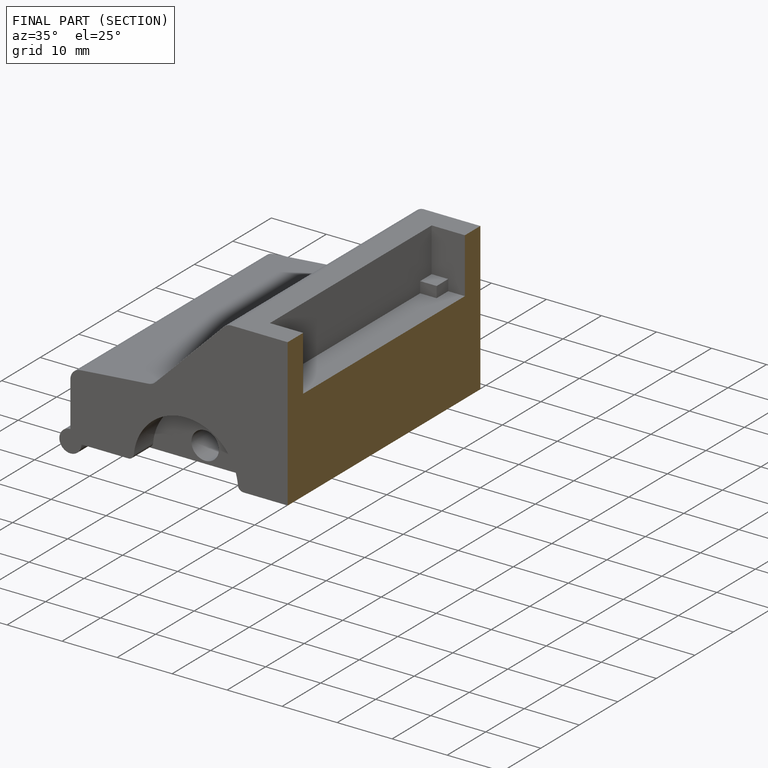
[diagram: finished part — half-section view (interior)]
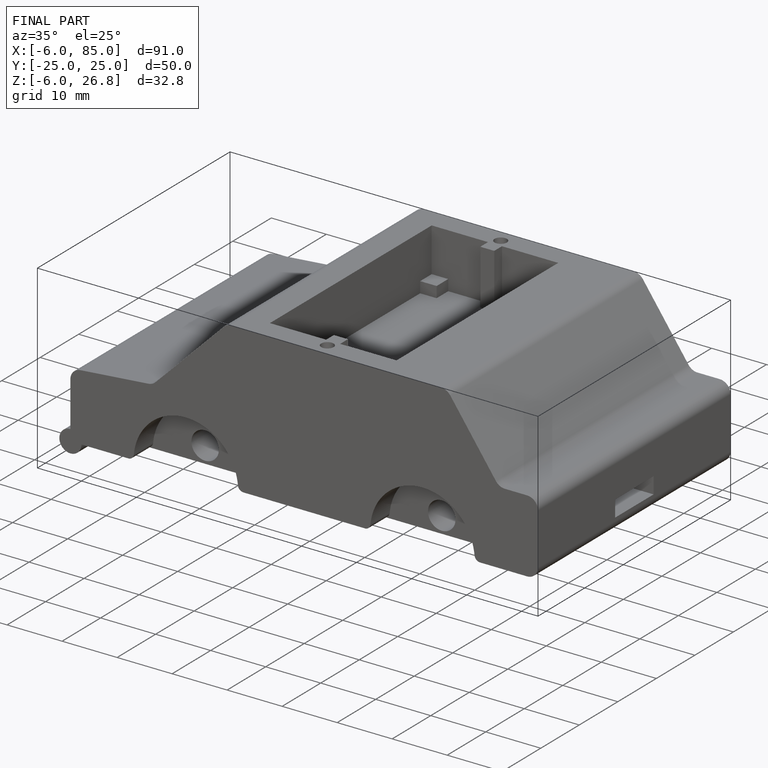
[diagram: finished part — iso view with bounding-box wireframe]
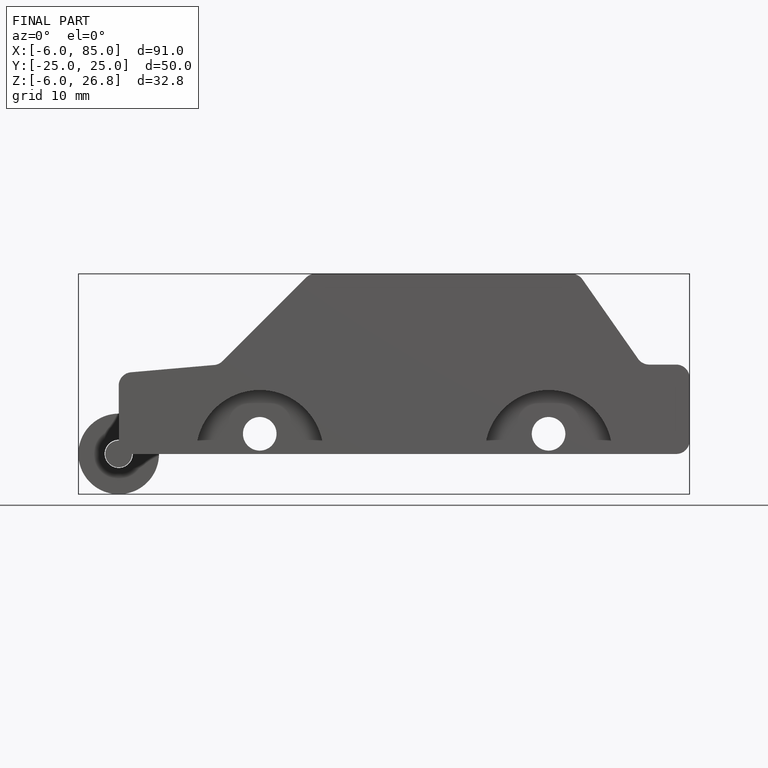
[diagram: finished part — front view with bounding-box wireframe]
